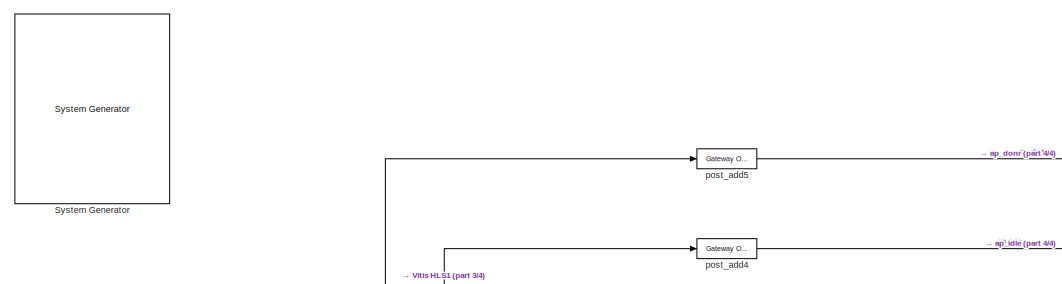
[diagram: root canvas - part 1/4, top center region]
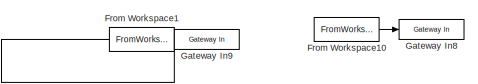
[diagram: root canvas - part 2/4, top left region]
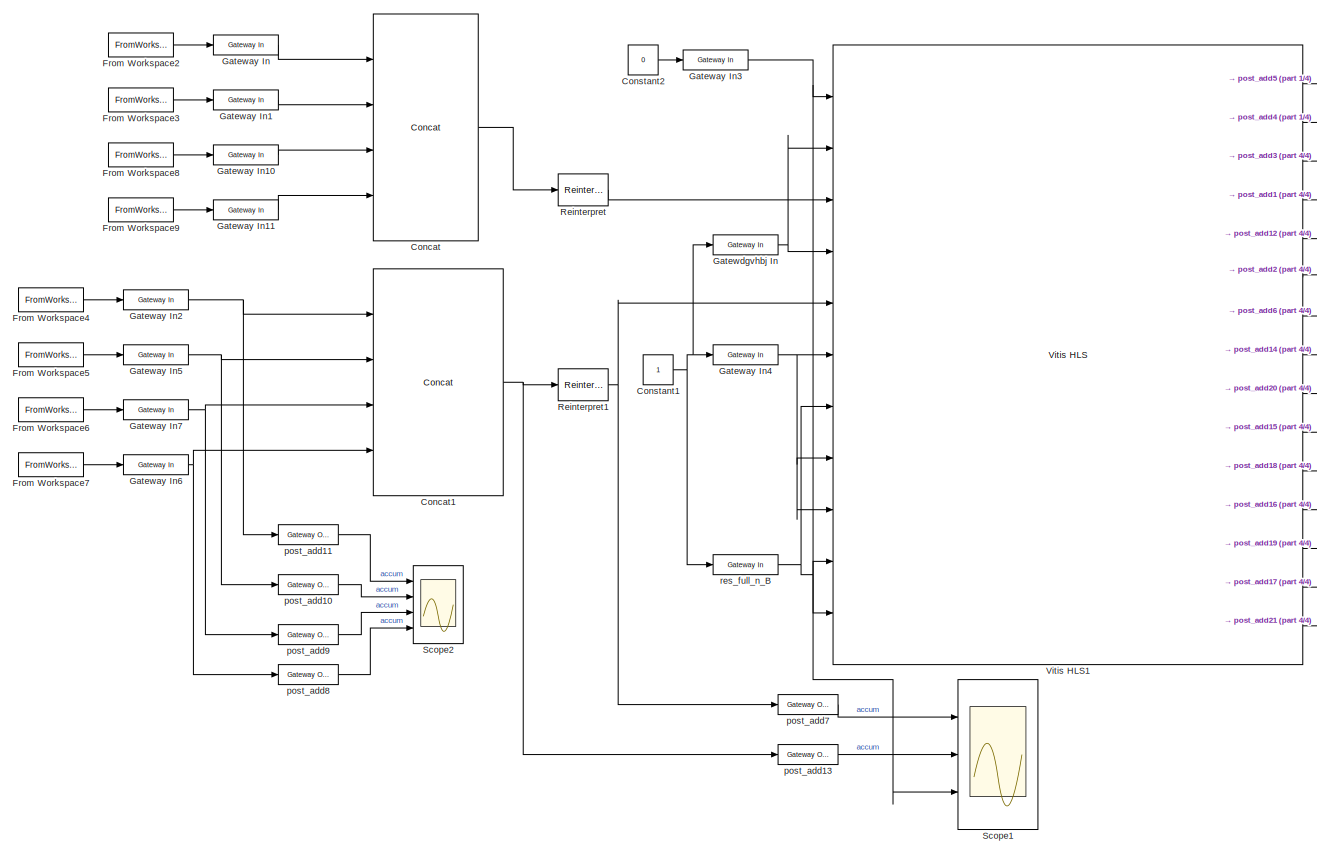
[diagram: root canvas - part 3/4, middle left region]
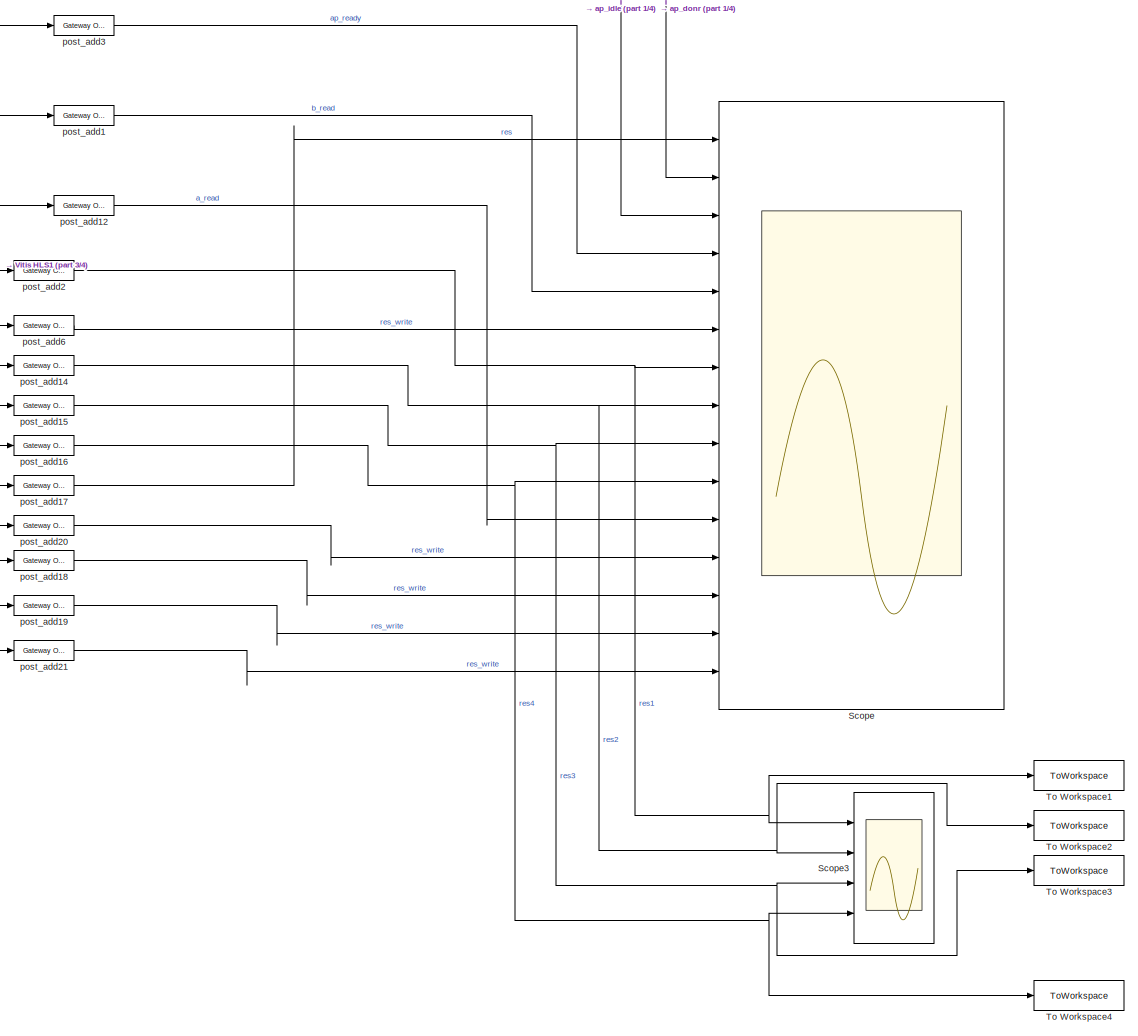
[diagram: root canvas - part 4/4, right side, full height]
MODEL slx_5bbda289bd4e
KIND model
CONFIG AbsTol = auto
CONFIG EnableMultiTasking = off
CONFIG FixedStep = auto
CONFIG MaxStep = auto
CONFIG MinStep = auto
CONFIG RelTol = 1e-3
CONFIG SampleTimeConstraint = Unconstrained
CONFIG SolverName = VariableStepAuto
CONFIG StartTime = 0.0
CONFIG StopTime = 30
BLOCK [Reference]  System Generator  REF=xbsIndex_r4/ System Generator
  AttributesFormatString = System\nGenerator
  Ports = []
  SourceBlock = xbsIndex_r4/ System Generator
  SourceType = Xilinx System Generator Block
  Tag = genX
  UserDataPersistent = on
BLOCK [Reference] Concat  REF=hdlBasic/Concat
  Ports = [4, 1]
  SourceBlock = hdlBasic/Concat
  SourceType = Bus Concatenator Block
BLOCK [Reference] Concat1  REF=hdlBasic/Concat
  Ports = [4, 1]
  SourceBlock = hdlBasic/Concat
  SourceType = Bus Concatenator Block
BLOCK [Constant] Constant1
BLOCK [Constant] Constant2
  Value = 0
BLOCK [FromWorkspace] From Workspace1
  Commented = on
  VariableName = control
BLOCK [FromWorkspace] From Workspace10
  Commented = on
  VariableName = control1
BLOCK [FromWorkspace] From Workspace2
  VariableName = a_i0_var
BLOCK [FromWorkspace] From Workspace3
  VariableName = a_i1_var
BLOCK [FromWorkspace] From Workspace4
  VariableName = b_i0_var
BLOCK [FromWorkspace] From Workspace5
  VariableName = b_i1_var
BLOCK [FromWorkspace] From Workspace6
  VariableName = b_i2_var
BLOCK [FromWorkspace] From Workspace7
  VariableName = b_i3_var
BLOCK [FromWorkspace] From Workspace8
  VariableName = a_i2_var
BLOCK [FromWorkspace] From Workspace9
  VariableName = a_i3_var
BLOCK [Reference] Gateway In  REF=hdlBasic/Gateway In
  NameLocation = top
  Ports = [1, 1]
  SourceBlock = hdlBasic/Gateway In
  SourceType = Gateway In Block
BLOCK [Reference] Gateway In1  REF=hdlBasic/Gateway In
  Ports = [1, 1]
  SourceBlock = hdlBasic/Gateway In
  SourceType = Gateway In Block
BLOCK [Reference] Gateway In10  REF=hdlBasic/Gateway In
  Ports = [1, 1]
  SourceBlock = hdlBasic/Gateway In
  SourceType = Gateway In Block
BLOCK [Reference] Gateway In11  REF=hdlBasic/Gateway In
  Ports = [1, 1]
  SourceBlock = hdlBasic/Gateway In
  SourceType = Gateway In Block
BLOCK [Reference] Gateway In2  REF=hdlBasic/Gateway In
  Ports = [1, 1]
  SourceBlock = hdlBasic/Gateway In
  SourceType = Gateway In Block
BLOCK [Reference] Gateway In3  REF=hdlBasic/Gateway In
  NameLocation = top
  Ports = [1, 1]
  SourceBlock = hdlBasic/Gateway In
  SourceType = Gateway In Block
BLOCK [Reference] Gateway In4  REF=hdlBasic/Gateway In
  NameLocation = top
  Ports = [1, 1]
  SourceBlock = hdlBasic/Gateway In
  SourceType = Gateway In Block
BLOCK [Reference] Gateway In5  REF=hdlBasic/Gateway In
  Ports = [1, 1]
  SourceBlock = hdlBasic/Gateway In
  SourceType = Gateway In Block
BLOCK [Reference] Gateway In6  REF=hdlBasic/Gateway In
  NameLocation = top
  Ports = [1, 1]
  SourceBlock = hdlBasic/Gateway In
  SourceType = Gateway In Block
BLOCK [Reference] Gateway In7  REF=hdlBasic/Gateway In
  Ports = [1, 1]
  SourceBlock = hdlBasic/Gateway In
  SourceType = Gateway In Block
BLOCK [Reference] Gateway In8  REF=hdlBasic/Gateway In
  Commented = on
  NameLocation = top
  Ports = [1, 1]
  SourceBlock = hdlBasic/Gateway In
  SourceType = Gateway In Block
BLOCK [Reference] Gateway In9  REF=hdlBasic/Gateway In
  Commented = on
  NameLocation = top
  Ports = [1, 1]
  SourceBlock = hdlBasic/Gateway In
  SourceType = Gateway In Block
BLOCK [Reference] Gatewdgvhbj In  REF=hdlBasic/Gateway In
  Ports = [1, 1]
  SourceBlock = hdlBasic/Gateway In
  SourceType = Gateway In Block
BLOCK [Reference] Reinterpret  REF=hdlBasic/Reinterpret
  Ports = [1, 1]
  SourceBlock = hdlBasic/Reinterpret
  SourceType = Type Reinterpreter Block
BLOCK [Reference] Reinterpret1  REF=hdlBasic/Reinterpret
  Ports = [1, 1]
  SourceBlock = hdlBasic/Reinterpret
  SourceType = Type Reinterpreter Block
BLOCK [Scope] Scope
  Floating = off
  NumInputPorts = 15
  Ports = [15]
  ScopeSpecificationString = Simulink.scopes.TimeScopeBlockCfg('CurrentConfiguration', extmgr.ConfigurationSet(extmgr.Configuration('Core','General UI',true),extmgr.Configuration('Core','Source UI',true),extmgr.Configuration('Sources','WiredSimulink',true),extmgr.Configuration('Visuals','Time Domain',true,'SerializedDisplays',{struct('MinYLimReal','-3659230532665356.00000','MaxYLimReal','32933074793988212.00000','YLabelReal',...<+11652ch>
BLOCK [Scope] Scope1
  Floating = off
  NumInputPorts = 3
  Ports = [3]
  ScopeSpecificationString = Simulink.scopes.TimeScopeBlockCfg('CurrentConfiguration', extmgr.ConfigurationSet(extmgr.Configuration('Core','General UI',true),extmgr.Configuration('Core','Source UI',true),extmgr.Configuration('Sources','WiredSimulink',true),extmgr.Configuration('Visuals','Time Domain',true,'SerializedDisplays',{struct('MinYLimReal','-140739635871744.46875','MaxYLimReal','1266656722845700.5','YLabelReal','','Mi...<+2828ch>
BLOCK [Scope] Scope2
  Floating = off
  NumInputPorts = 4
  Ports = [4]
  ScopeSpecificationString = Simulink.scopes.TimeScopeBlockCfg('CurrentConfiguration', extmgr.ConfigurationSet(extmgr.Configuration('Core','General UI',true),extmgr.Configuration('Core','Source UI',true),extmgr.Configuration('Sources','WiredSimulink',true,'DataLoggingVariableName','ScopeData1'),extmgr.Configuration('Visuals','Time Domain',true,'SerializedDisplays',{struct('MinYLimReal','-0.5','MaxYLimReal','4.5','YLabelReal',...<+3399ch>
BLOCK [Scope] Scope3
  Floating = off
  NumInputPorts = 4
  Ports = [4]
  ScopeSpecificationString = Simulink.scopes.TimeScopeBlockCfg('CurrentConfiguration', extmgr.ConfigurationSet(extmgr.Configuration('Core','General UI',true),extmgr.Configuration('Core','Source UI',true),extmgr.Configuration('Sources','WiredSimulink',true,'DataLoggingVariableName','ScopeData1'),extmgr.Configuration('Visuals','Time Domain',true,'SerializedDisplays',{struct('MinYLimReal','-3.25','MaxYLimReal','29.25','YLabelRea...<+3522ch>
BLOCK [ToWorkspace] To Workspace1
  FixptAsFi = on
  MaxDataPoints = inf
  Ports = [1]
  SampleTime = -1
  SaveFormat = Timeseries
  VariableName = c_1var
BLOCK [ToWorkspace] To Workspace2
  FixptAsFi = on
  MaxDataPoints = inf
  Ports = [1]
  SampleTime = -1
  SaveFormat = Timeseries
  VariableName = c_2var
BLOCK [ToWorkspace] To Workspace3
  FixptAsFi = on
  MaxDataPoints = inf
  Ports = [1]
  SampleTime = -1
  SaveFormat = Timeseries
  VariableName = c_3var
BLOCK [ToWorkspace] To Workspace4
  FixptAsFi = on
  MaxDataPoints = inf
  Ports = [1]
  SampleTime = -1
  SaveFormat = Timeseries
  VariableName = c_4var
BLOCK [Reference] Vitis HLS1  REF=hdlBasic/Vitis HLS
  Ports = [11, 15]
  SourceBlock = hdlBasic/Vitis HLS
  SourceType = Xilinx High Level Synthesis Block
BLOCK [Reference] post_add1  REF=hdlBasic/Gateway Out
  Ports = [1, 1]
  SourceBlock = hdlBasic/Gateway Out
  SourceType = Gateway Out Block
BLOCK [Reference] post_add10  REF=hdlBasic/Gateway Out
  Ports = [1, 1]
  SourceBlock = hdlBasic/Gateway Out
  SourceType = Gateway Out Block
BLOCK [Reference] post_add11  REF=hdlBasic/Gateway Out
  Ports = [1, 1]
  SourceBlock = hdlBasic/Gateway Out
  SourceType = Gateway Out Block
BLOCK [Reference] post_add12  REF=hdlBasic/Gateway Out
  Ports = [1, 1]
  SourceBlock = hdlBasic/Gateway Out
  SourceType = Gateway Out Block
BLOCK [Reference] post_add13  REF=hdlBasic/Gateway Out
  Ports = [1, 1]
  SourceBlock = hdlBasic/Gateway Out
  SourceType = Gateway Out Block
BLOCK [Reference] post_add14  REF=hdlBasic/Gateway Out
  Ports = [1, 1]
  SourceBlock = hdlBasic/Gateway Out
  SourceType = Gateway Out Block
BLOCK [Reference] post_add15  REF=hdlBasic/Gateway Out
  Ports = [1, 1]
  SourceBlock = hdlBasic/Gateway Out
  SourceType = Gateway Out Block
BLOCK [Reference] post_add16  REF=hdlBasic/Gateway Out
  Ports = [1, 1]
  SourceBlock = hdlBasic/Gateway Out
  SourceType = Gateway Out Block
BLOCK [Reference] post_add17  REF=hdlBasic/Gateway Out
  Ports = [1, 1]
  SourceBlock = hdlBasic/Gateway Out
  SourceType = Gateway Out Block
BLOCK [Reference] post_add18  REF=hdlBasic/Gateway Out
  Ports = [1, 1]
  SourceBlock = hdlBasic/Gateway Out
  SourceType = Gateway Out Block
BLOCK [Reference] post_add19  REF=hdlBasic/Gateway Out
  Ports = [1, 1]
  SourceBlock = hdlBasic/Gateway Out
  SourceType = Gateway Out Block
BLOCK [Reference] post_add2  REF=hdlBasic/Gateway Out
  Ports = [1, 1]
  SourceBlock = hdlBasic/Gateway Out
  SourceType = Gateway Out Block
BLOCK [Reference] post_add20  REF=hdlBasic/Gateway Out
  Ports = [1, 1]
  SourceBlock = hdlBasic/Gateway Out
  SourceType = Gateway Out Block
BLOCK [Reference] post_add21  REF=hdlBasic/Gateway Out
  Ports = [1, 1]
  SourceBlock = hdlBasic/Gateway Out
  SourceType = Gateway Out Block
BLOCK [Reference] post_add3  REF=hdlBasic/Gateway Out
  Ports = [1, 1]
  SourceBlock = hdlBasic/Gateway Out
  SourceType = Gateway Out Block
BLOCK [Reference] post_add4  REF=hdlBasic/Gateway Out
  Ports = [1, 1]
  SourceBlock = hdlBasic/Gateway Out
  SourceType = Gateway Out Block
BLOCK [Reference] post_add5  REF=hdlBasic/Gateway Out
  Ports = [1, 1]
  SourceBlock = hdlBasic/Gateway Out
  SourceType = Gateway Out Block
BLOCK [Reference] post_add6  REF=hdlBasic/Gateway Out
  Ports = [1, 1]
  SourceBlock = hdlBasic/Gateway Out
  SourceType = Gateway Out Block
BLOCK [Reference] post_add7  REF=hdlBasic/Gateway Out
  Ports = [1, 1]
  SourceBlock = hdlBasic/Gateway Out
  SourceType = Gateway Out Block
BLOCK [Reference] post_add8  REF=hdlBasic/Gateway Out
  Ports = [1, 1]
  SourceBlock = hdlBasic/Gateway Out
  SourceType = Gateway Out Block
BLOCK [Reference] post_add9  REF=hdlBasic/Gateway Out
  Ports = [1, 1]
  SourceBlock = hdlBasic/Gateway Out
  SourceType = Gateway Out Block
BLOCK [Reference] res_full_n_B  REF=hdlBasic/Gateway In
  NameLocation = top
  Ports = [1, 1]
  SourceBlock = hdlBasic/Gateway In
  SourceType = Gateway In Block
NET Concat1:1 -> Reinterpret1:1, post_add13:1
LINE Concat:1 -> Reinterpret:1
NET Constant1:1 -> Gateway In4:1, Gatewdgvhbj In:1, res_full_n_B:1
LINE Constant2:1 -> Gateway In3:1
LINE From Workspace10:1 -> Gateway In8:1
LINE From Workspace1:1 -> Gateway In9:1
LINE From Workspace2:1 -> Gateway In:1
LINE From Workspace3:1 -> Gateway In1:1
LINE From Workspace4:1 -> Gateway In2:1
LINE From Workspace5:1 -> Gateway In5:1
LINE From Workspace6:1 -> Gateway In7:1
LINE From Workspace7:1 -> Gateway In6:1
LINE From Workspace8:1 -> Gateway In10:1
LINE From Workspace9:1 -> Gateway In11:1
LINE Gateway In10:1 -> Concat:3
LINE Gateway In11:1 -> Concat:4
LINE Gateway In1:1 -> Concat:2
NET Gateway In2:1 -> Concat1:1, post_add11:1
NET Gateway In3:1 -> Scope1:3, Vitis HLS1:1
NET Gateway In4:1 -> Vitis HLS1:6, Vitis HLS1:8, Vitis HLS1:9
NET Gateway In5:1 -> Concat1:2, post_add10:1
NET Gateway In6:1 -> Concat1:4, post_add8:1
NET Gateway In7:1 -> Concat1:3, post_add9:1
LINE Gateway In:1 -> Concat:1
NET Gatewdgvhbj In:1 -> Vitis HLS1:2, Vitis HLS1:4
NET Reinterpret1:1 -> Vitis HLS1:5, post_add7:1
LINE Reinterpret:1 -> Vitis HLS1:3
LINE Vitis HLS1:1 -> post_add5:1
LINE Vitis HLS1:10 -> post_add15:1
LINE Vitis HLS1:11 -> post_add18:1
LINE Vitis HLS1:12 -> post_add16:1
LINE Vitis HLS1:13 -> post_add19:1
LINE Vitis HLS1:14 -> post_add17:1
LINE Vitis HLS1:15 -> post_add21:1
LINE Vitis HLS1:2 -> post_add4:1
LINE Vitis HLS1:3 -> post_add3:1
LINE Vitis HLS1:4 -> post_add1:1
LINE Vitis HLS1:5 -> post_add12:1
LINE Vitis HLS1:6 -> post_add2:1
LINE Vitis HLS1:7 -> post_add6:1
LINE Vitis HLS1:8 -> post_add14:1
LINE Vitis HLS1:9 -> post_add20:1
LINE post_add10:1 -> Scope2:2
LINE post_add11:1 -> Scope2:1
LINE post_add12:1 -> Scope:11
LINE post_add13:1 -> Scope1:2
NET post_add14:1 -> Scope3:2, Scope:8, To Workspace2:1
NET post_add15:1 -> Scope3:3, Scope:9, To Workspace3:1
NET post_add16:1 -> Scope3:4, Scope:10, To Workspace4:1
LINE post_add17:1 -> Scope:1
LINE post_add18:1 -> Scope:13
LINE post_add19:1 -> Scope:14
LINE post_add1:1 -> Scope:5
LINE post_add20:1 -> Scope:12
LINE post_add21:1 -> Scope:15
NET post_add2:1 -> Scope3:1, Scope:7, To Workspace1:1
LINE post_add3:1 -> Scope:4
LINE post_add4:1 -> Scope:3
LINE post_add5:1 -> Scope:2
LINE post_add6:1 -> Scope:6
LINE post_add7:1 -> Scope1:1
LINE post_add8:1 -> Scope2:4
LINE post_add9:1 -> Scope2:3
NET res_full_n_B:1 -> Vitis HLS1:10, Vitis HLS1:11, Vitis HLS1:7
note: NET lines group one-source signal fan-out (src -> all destinations, sorted); 1:1 wires keep LINE
